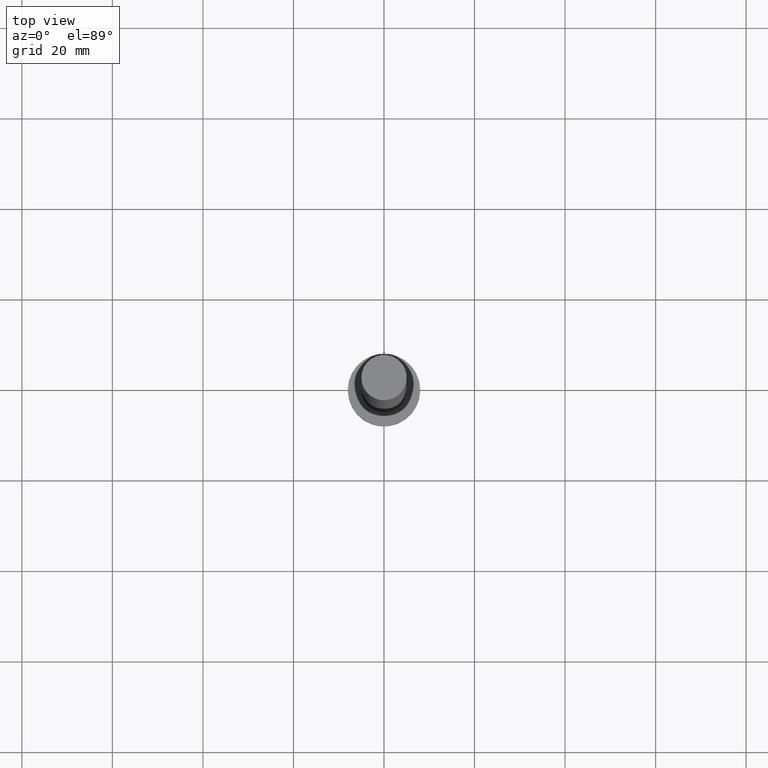
[diagram: clean part render]
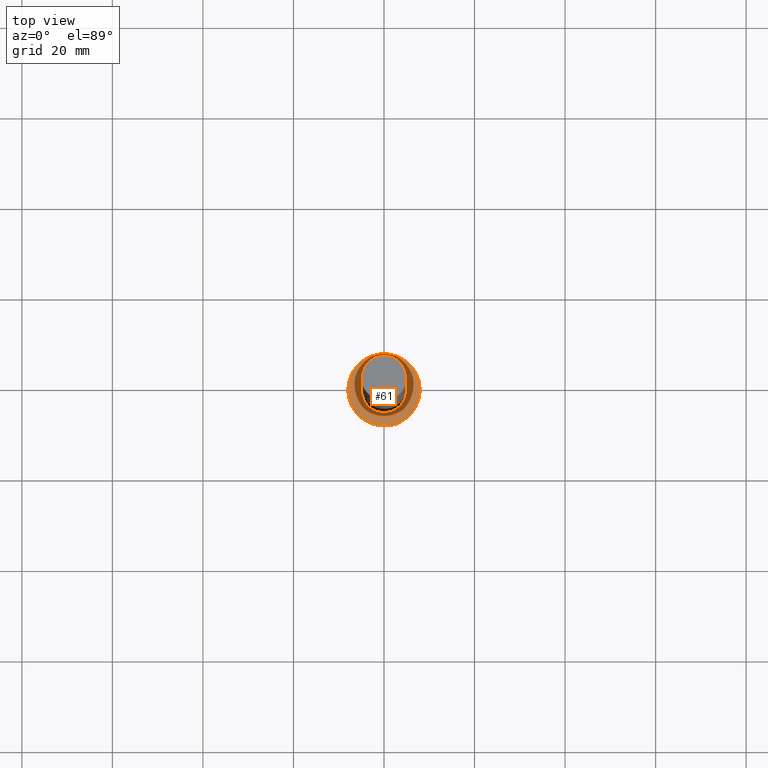
[diagram: same view with one face highlighted and labeled with its STEP entity id]
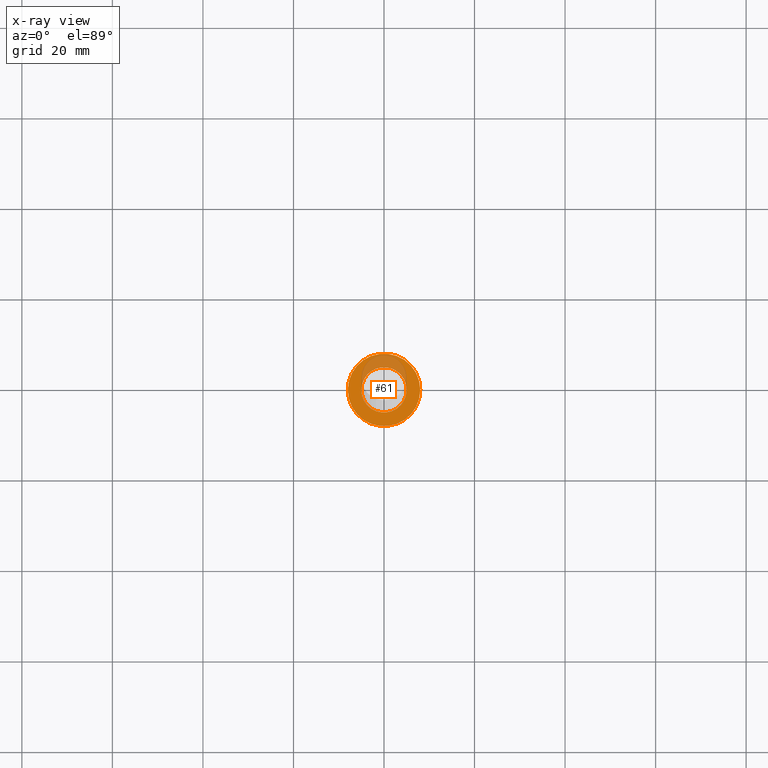
[diagram: x-ray of the same camera — body ghosted, the highlighted face saturated]
A machine part, top view. The second image highlights one B-rep face of the part: STEP entity #61.
The next image is the same camera in x-ray: the body ghosted, the highlighted face saturated — about 22% of this face is hidden behind the body in this view.
In plain terms, the highlighted planar face has unit normal (0, 0, 1).
Its self-contained STEP definition (entity closure, byte-faithful):
#3 = PLANE ( 'NONE',  #34 ) ;
#4 = CARTESIAN_POINT ( 'NONE',  ( 0.000000000000000000, 0.000000000000000000, 5.000000000000000000 ) ) ;
#26 = FACE_OUTER_BOUND ( 'NONE', #128, .T. ) ;
#34 = AXIS2_PLACEMENT_3D ( 'NONE', #66, #83, #221 ) ;
#38 = EDGE_CURVE ( 'NONE', #122, #124, #76, .T. ) ;
#49 = CARTESIAN_POINT ( 'NONE',  ( -5.000000000000000888, 0.000000000000000000, 5.000000000000000000 ) ) ;
#51 = DIRECTION ( 'NONE',  ( 0.000000000000000000, 0.000000000000000000, 1.000000000000000000 ) ) ;
#53 = CIRCLE ( 'NONE', #200, 8.000000000000000000 ) ;
#54 = AXIS2_PLACEMENT_3D ( 'NONE', #148, #134, #114 ) ;
#56 = EDGE_LOOP ( 'NONE', ( #87, #110 ) ) ;
#61 = ADVANCED_FACE ( 'NONE', ( #224, #26 ), #3, .T. ) ;
#66 = CARTESIAN_POINT ( 'NONE',  ( 0.000000000000000000, 0.000000000000000000, 5.000000000000000000 ) ) ;
#76 = CIRCLE ( 'NONE', #94, 8.000000000000000000 ) ;
#83 = DIRECTION ( 'NONE',  ( 0.000000000000000000, 0.000000000000000000, 1.000000000000000000 ) ) ;
#84 = DIRECTION ( 'NONE',  ( 1.000000000000000000, 0.000000000000000000, 0.000000000000000000 ) ) ;
#86 = EDGE_CURVE ( 'NONE', #124, #122, #53, .T. ) ;
#87 = ORIENTED_EDGE ( 'NONE', *, *, #236, .F. ) ;
#94 = AXIS2_PLACEMENT_3D ( 'NONE', #182, #165, #204 ) ;
#110 = ORIENTED_EDGE ( 'NONE', *, *, #250, .F. ) ;
#112 = DIRECTION ( 'NONE',  ( 1.000000000000000000, 0.000000000000000000, 0.000000000000000000 ) ) ;
#114 = DIRECTION ( 'NONE',  ( 1.000000000000000000, 0.000000000000000000, 0.000000000000000000 ) ) ;
#122 = VERTEX_POINT ( 'NONE', #189 ) ;
#124 = VERTEX_POINT ( 'NONE', #190 ) ;
#128 = EDGE_LOOP ( 'NONE', ( #197, #237 ) ) ;
#130 = CARTESIAN_POINT ( 'NONE',  ( 0.000000000000000000, 0.000000000000000000, 5.000000000000000000 ) ) ;
#134 = DIRECTION ( 'NONE',  ( 0.000000000000000000, 0.000000000000000000, 1.000000000000000000 ) ) ;
#148 = CARTESIAN_POINT ( 'NONE',  ( 0.000000000000000000, 0.000000000000000000, 5.000000000000000000 ) ) ;
#160 = VERTEX_POINT ( 'NONE', #247 ) ;
#165 = DIRECTION ( 'NONE',  ( 0.000000000000000000, 0.000000000000000000, 1.000000000000000000 ) ) ;
#182 = CARTESIAN_POINT ( 'NONE',  ( 0.000000000000000000, 0.000000000000000000, 5.000000000000000000 ) ) ;
#184 = DIRECTION ( 'NONE',  ( 0.000000000000000000, 0.000000000000000000, 1.000000000000000000 ) ) ;
#187 = CIRCLE ( 'NONE', #54, 5.000000000000000888 ) ;
#189 = CARTESIAN_POINT ( 'NONE',  ( 8.000000000000000000, 9.797174393178825657E-16, 5.000000000000000000 ) ) ;
#190 = CARTESIAN_POINT ( 'NONE',  ( -8.000000000000000000, 0.000000000000000000, 5.000000000000000000 ) ) ;
#197 = ORIENTED_EDGE ( 'NONE', *, *, #86, .T. ) ;
#200 = AXIS2_PLACEMENT_3D ( 'NONE', #4, #184, #84 ) ;
#204 = DIRECTION ( 'NONE',  ( 1.000000000000000000, 0.000000000000000000, 0.000000000000000000 ) ) ;
#213 = AXIS2_PLACEMENT_3D ( 'NONE', #130, #51, #112 ) ;
#217 = VERTEX_POINT ( 'NONE', #49 ) ;
#221 = DIRECTION ( 'NONE',  ( 1.000000000000000000, 0.000000000000000000, -0.000000000000000000 ) ) ;
#224 = FACE_BOUND ( 'NONE', #56, .T. ) ;
#235 = CIRCLE ( 'NONE', #213, 5.000000000000000888 ) ;
#236 = EDGE_CURVE ( 'NONE', #217, #160, #187, .T. ) ;
#237 = ORIENTED_EDGE ( 'NONE', *, *, #38, .T. ) ;
#247 = CARTESIAN_POINT ( 'NONE',  ( 5.000000000000000888, 6.123233995736767268E-16, 5.000000000000000000 ) ) ;
#250 = EDGE_CURVE ( 'NONE', #160, #217, #235, .T. ) ;